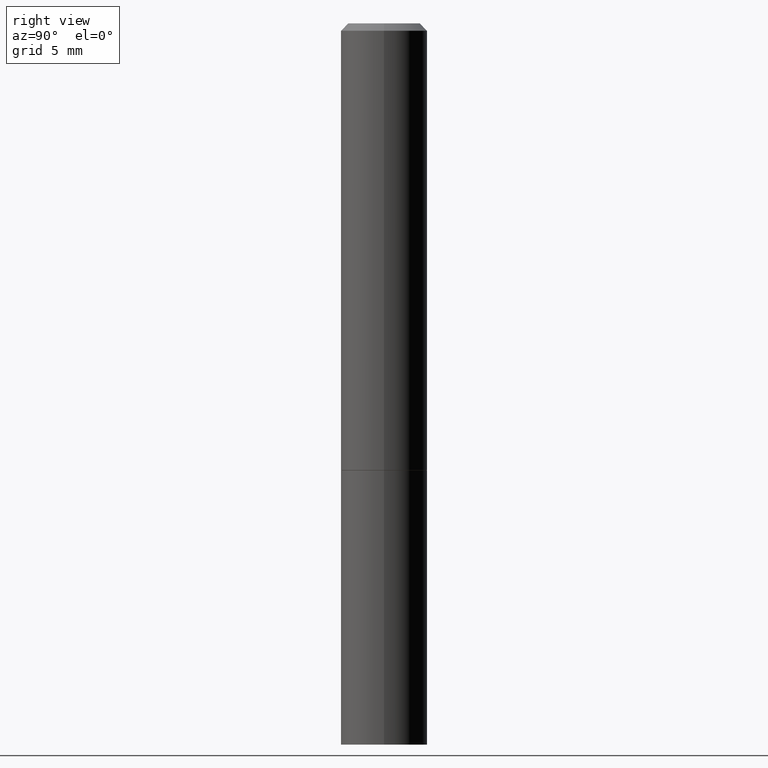
[diagram: clean part render]
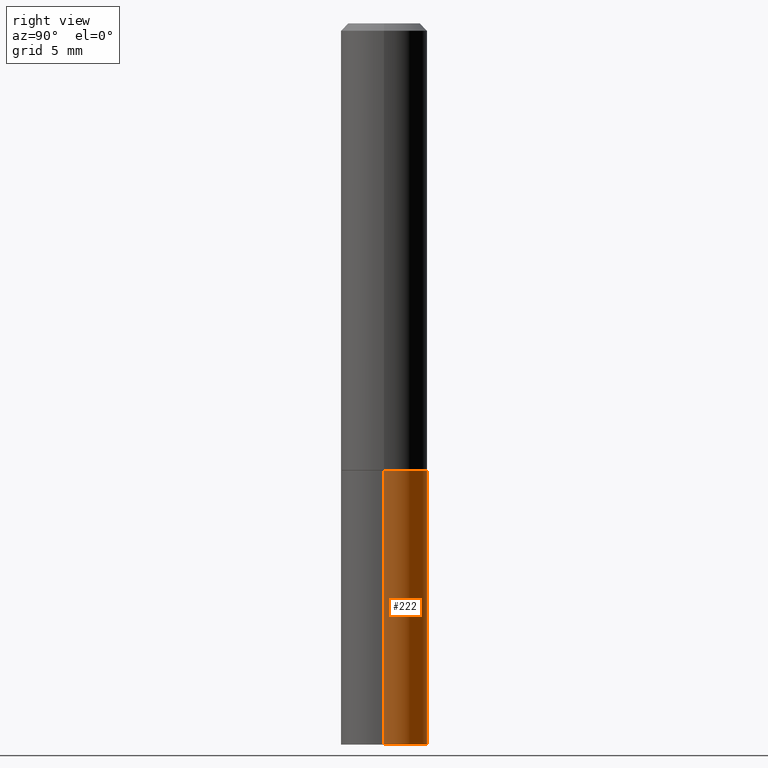
[diagram: same view with one face highlighted and labeled with its STEP entity id]
A machine part, right view. The second image highlights one B-rep face of the part: STEP entity #222.
In plain terms, the highlighted cylindrical surface (partial cylindrical patch) has radius 2.9997 mm, axis along (-0, 0, 1).
Its self-contained STEP definition (entity closure, byte-faithful):
#12 = LINE ( 'NONE', #241, #104 ) ;
#15 = AXIS2_PLACEMENT_3D ( 'NONE', #204, #240, #350 ) ;
#16 = DIRECTION ( 'NONE',  ( -2.445468806185136877E-29, 3.491481338843145188E-15, 1.000000000000000000 ) ) ;
#17 = CARTESIAN_POINT ( 'NONE',  ( -0.1180999999999999966, -4.728016023852716776E-15, -1.220499999999999918 ) ) ;
#18 = ORIENTED_EDGE ( 'NONE', *, *, #22, .F. ) ;
#22 = EDGE_CURVE ( 'NONE', #298, #268, #299, .T. ) ;
#25 = CARTESIAN_POINT ( 'NONE',  ( 0.1180999999999999966, -7.697668907747479970E-15, -1.968500000000000139 ) ) ;
#63 = ORIENTED_EDGE ( 'NONE', *, *, #267, .T. ) ;
#68 = CARTESIAN_POINT ( 'NONE',  ( 0.1180999999999999966, -5.086040866292807290E-15, -1.220499999999999918 ) ) ;
#70 = EDGE_LOOP ( 'NONE', ( #259, #63, #18, #180 ) ) ;
#87 = CYLINDRICAL_SURFACE ( 'NONE', #15, 0.1180999999999999966 ) ;
#92 = DIRECTION ( 'NONE',  ( -2.445468806185136877E-29, 3.491481338843145188E-15, 1.000000000000000000 ) ) ;
#104 = VECTOR ( 'NONE', #92, 39.37007874015748143 ) ;
#111 = AXIS2_PLACEMENT_3D ( 'NONE', #248, #130, #219 ) ;
#121 = CARTESIAN_POINT ( 'NONE',  ( 0.1180999999999999966, -8.246878922347480654E-16, 5.758764772215000440E-30 ) ) ;
#130 = DIRECTION ( 'NONE',  ( -2.445468806185136597E-29, 3.491481338843145583E-15, 1.000000000000000000 ) ) ;
#165 = EDGE_CURVE ( 'NONE', #190, #298, #297, .T. ) ;
#171 = CARTESIAN_POINT ( 'NONE',  ( -0.1180999999999999966, -4.728016023852716776E-15, -1.968500000000000139 ) ) ;
#180 = ORIENTED_EDGE ( 'NONE', *, *, #165, .F. ) ;
#190 = VERTEX_POINT ( 'NONE', #25 ) ;
#197 = VECTOR ( 'NONE', #16, 39.37007874015748143 ) ;
#204 = CARTESIAN_POINT ( 'NONE',  ( 0.000000000000000000, 0.000000000000000000, 0.000000000000000000 ) ) ;
#209 = CIRCLE ( 'NONE', #111, 0.1180999999999999966 ) ;
#214 = CARTESIAN_POINT ( 'NONE',  ( 2.984694677948959472E-29, -4.261352974058059028E-15, -1.220499999999999918 ) ) ;
#219 = DIRECTION ( 'NONE',  ( 1.000000000000000000, -6.982962677686265133E-15, 0.000000000000000000 ) ) ;
#222 = ADVANCED_FACE ( 'NONE', ( #238 ), #87, .T. ) ;
#235 = EDGE_CURVE ( 'NONE', #190, #287, #209, .T. ) ;
#238 = FACE_OUTER_BOUND ( 'NONE', #70, .T. ) ;
#240 = DIRECTION ( 'NONE',  ( -2.445468806185136597E-29, 3.491481338843145583E-15, 1.000000000000000000 ) ) ;
#241 = CARTESIAN_POINT ( 'NONE',  ( -0.1180999999999999966, 8.391509709326782957E-16, -5.809262341591043784E-30 ) ) ;
#245 = DIRECTION ( 'NONE',  ( 1.000000000000000000, -6.982962677686265133E-15, 0.000000000000000000 ) ) ;
#248 = CARTESIAN_POINT ( 'NONE',  ( 4.813905344975441835E-29, -6.872981015512731707E-15, -1.968500000000000139 ) ) ;
#259 = ORIENTED_EDGE ( 'NONE', *, *, #235, .T. ) ;
#267 = EDGE_CURVE ( 'NONE', #287, #268, #12, .T. ) ;
#268 = VERTEX_POINT ( 'NONE', #17 ) ;
#278 = DIRECTION ( 'NONE',  ( -2.445468806185136597E-29, 3.491481338843145583E-15, 1.000000000000000000 ) ) ;
#279 = AXIS2_PLACEMENT_3D ( 'NONE', #214, #278, #245 ) ;
#287 = VERTEX_POINT ( 'NONE', #171 ) ;
#297 = LINE ( 'NONE', #121, #197 ) ;
#298 = VERTEX_POINT ( 'NONE', #68 ) ;
#299 = CIRCLE ( 'NONE', #279, 0.1180999999999999966 ) ;
#350 = DIRECTION ( 'NONE',  ( 1.000000000000000000, -6.982962677686266711E-15, 4.876176775795936353E-29 ) ) ;